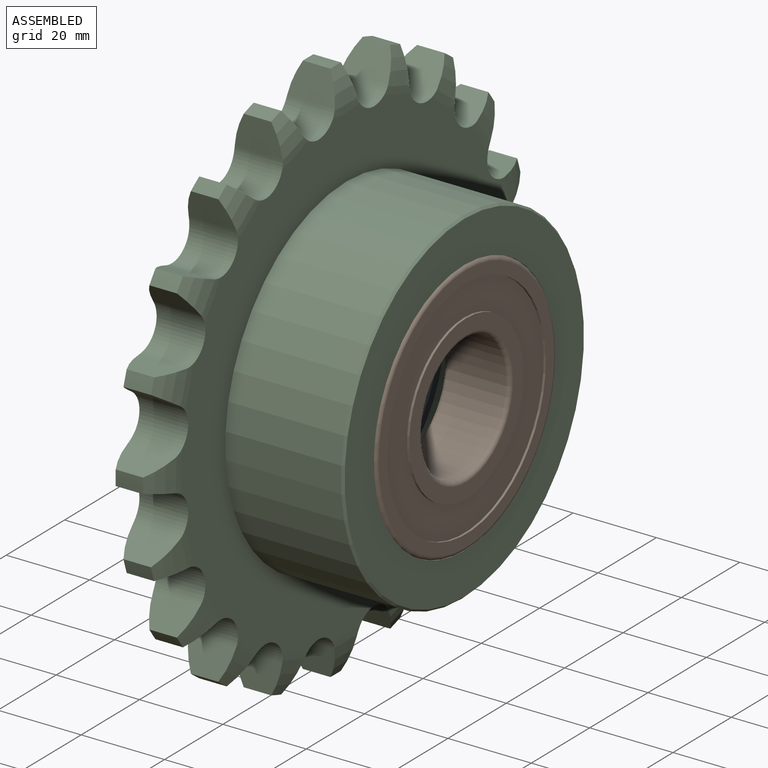
[diagram: assembled view]
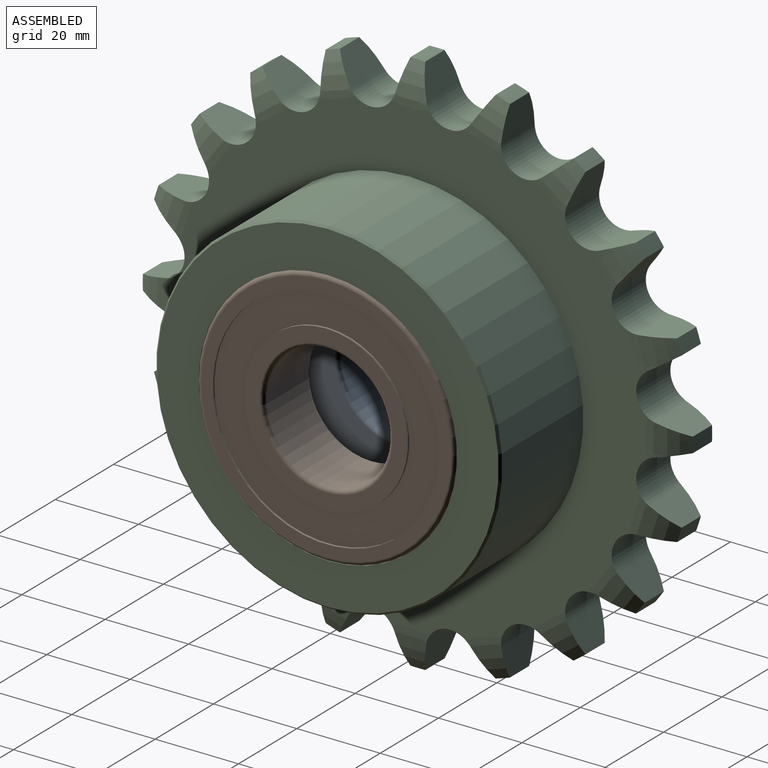
[diagram: assembled view, second angle]
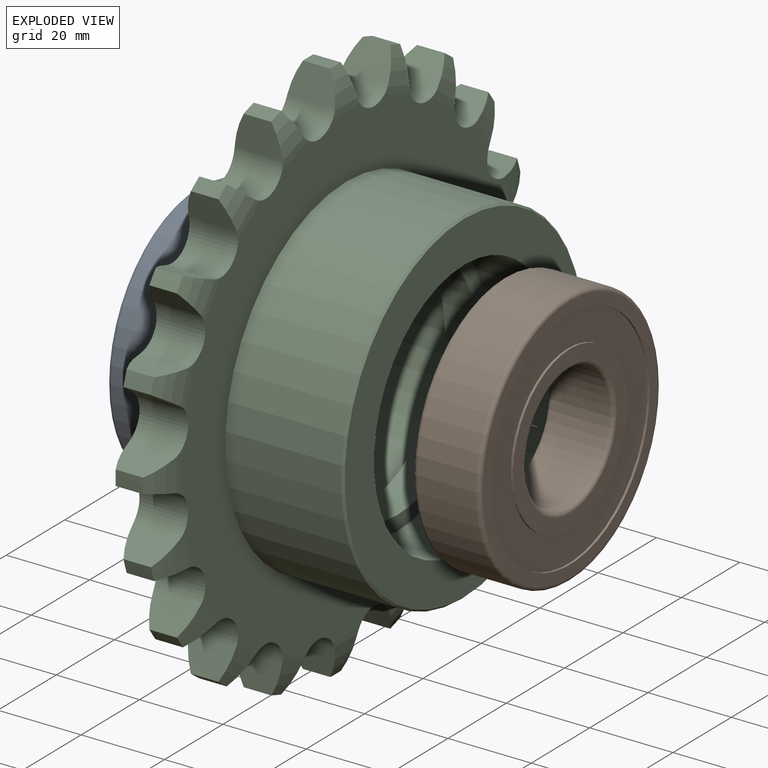
[diagram: exploded view]
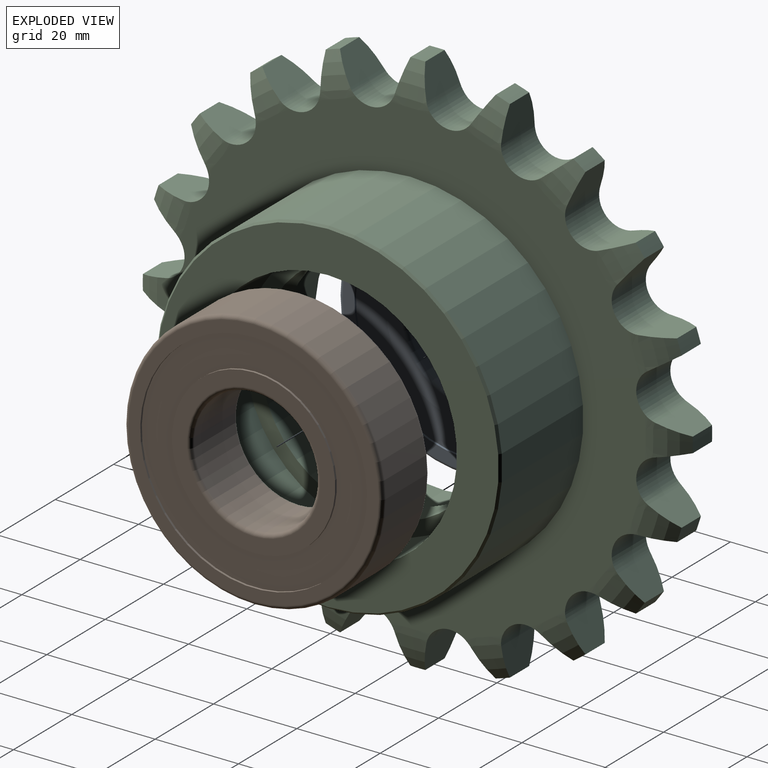
[diagram: exploded view, second angle]
ASSEMBLY  parts=3 mates=2
PART A: 16 faces, bbox 16x67.1x67.1 mm
  f0: torus R=30mm, axis (-1,0,0), area 302.4mm2, adj f1,f15
  f1: plane 60x60mm, normal (-1,0,0), area 503.2mm2, adj f0,f2
  f2: cylinder r=27.2mm len=54.4mm, axis (-1,0,0), area 90.6mm2, adj f1,f3
  f3: plane 54.4x54.4mm, normal (-1,0,0), area 1117.4mm2, adj f2,f4
  f4: cylinder r=19.6mm len=39.2mm, axis (-1,0,0), area 65.3mm2, adj f3,f5
  f5: plane 39.2x39.2mm, normal (-1,0,0), area 402.6mm2, adj f4,f6
  f6: torus R=16mm, axis (-1,0,0), area 151.6mm2, adj f5,f7
  f7: cylinder r=15mm len=30mm, axis (-1,0,0), area 1319.5mm2, adj f6,f8
  f8: torus R=16mm, axis (-1,0,0), area 151.6mm2, adj f7,f9
  f9: plane 39.2x39.2mm, normal (1,0,0), area 402.6mm2, adj f8,f10
  f10: cylinder r=19.6mm len=39.2mm, axis (-1,0,0), area 65.3mm2, adj f9,f11
  f11: plane 54.4x54.4mm, normal (1,0,0), area 1117.4mm2, adj f10,f12
  f12: cylinder r=27.2mm len=54.4mm, axis (-1,0,0), area 90.6mm2, adj f11,f13
  f13: plane 60x60mm, normal (1,0,0), area 503.2mm2, adj f12,f14
  f14: torus R=30mm, axis (-1,0,0), area 302.4mm2, adj f13,f15
  f15: cylinder r=31mm len=62mm, axis (-1,0,0), area 2726.9mm2, adj f0,f14
PART B: same geometry as A
PART C: 130 faces, bbox 40x140.6x140.6 mm
  f0: torus R=56.47mm, axis (-1,0,0), area 61.9mm2, adj f19,f57,f70,f72,f127,f128
  f1: torus R=56.47mm, axis (-1,0,0), area 61.9mm2, adj f20,f57,f125,f126,f128,f129
  f2: torus R=56.47mm, axis (-1,0,0), area 61.9mm2, adj f21,f57,f122,f123,f124,f125
  f3: torus R=56.47mm, axis (-1,0,0), area 61.9mm2, adj f22,f57,f119,f120,f121,f122
  f4: torus R=56.47mm, axis (-1,0,0), area 61.9mm2, adj f23,f57,f116,f117,f118,f119
  f5: torus R=56.47mm, axis (-1,0,0), area 61.9mm2, adj f24,f57,f113,f114,f115,f116
  f6: torus R=56.47mm, axis (-1,0,0), area 61.9mm2, adj f25,f57,f110,f111,f112,f113
  f7: torus R=56.47mm, axis (-1,0,0), area 61.9mm2, adj f26,f57,f107,f108,f109,f110
  f8: torus R=56.47mm, axis (-1,0,0), area 61.9mm2, adj f27,f57,f104,f105,f106,f107
  f9: torus R=56.47mm, axis (-1,0,0), area 61.9mm2, adj f28,f57,f101,f102,f103,f104
  f10: torus R=56.47mm, axis (-1,0,0), area 61.9mm2, adj f29,f57,f98,f99,f100,f101
  f11: torus R=56.47mm, axis (-1,0,0), area 61.9mm2, adj f30,f57,f95,f96,f97,f98
  f12: torus R=56.47mm, axis (-1,0,0), area 61.9mm2, adj f31,f57,f92,f93,f94,f95
  f13: torus R=56.47mm, axis (-1,0,0), area 61.9mm2, adj f32,f57,f89,f90,f91,f92
  f14: torus R=56.47mm, axis (-1,0,0), area 61.9mm2, adj f33,f57,f86,f87,f88,f89
  f15: torus R=56.47mm, axis (-1,0,0), area 61.9mm2, adj f34,f57,f83,f84,f85,f86
  f16: torus R=56.47mm, axis (-1,0,0), area 61.9mm2, adj f35,f57,f80,f81,f82,f83
  f17: torus R=56.47mm, axis (-1,0,0), area 61.9mm2, adj f36,f57,f77,f78,f79,f80
  f18: torus R=56.47mm, axis (-1,0,0), area 61.9mm2, adj f37,f57,f74,f75,f76,f77
  f19: cylinder r=66mm len=6.6mm, axis (-1,0,0), area 23.6mm2, adj f0,f38,f72,f127
  f20: cylinder r=66mm len=6.6mm, axis (-1,0,0), area 23.6mm2, adj f1,f39,f126,f129
  f21: cylinder r=66mm len=6.6mm, axis (-1,0,0), area 23.6mm2, adj f2,f40,f123,f124
  f22: cylinder r=66mm len=6.6mm, axis (-1,0,0), area 23.6mm2, adj f3,f41,f120,f121
  f23: cylinder r=66mm len=6.6mm, axis (-1,0,0), area 23.6mm2, adj f4,f42,f117,f118
  f24: cylinder r=66mm len=6.6mm, axis (-1,0,0), area 23.6mm2, adj f5,f43,f114,f115
  f25: cylinder r=66mm len=6.6mm, axis (-1,0,0), area 23.6mm2, adj f6,f44,f111,f112
  f26: cylinder r=66mm len=6.6mm, axis (-1,0,0), area 23.6mm2, adj f7,f45,f108,f109
  f27: cylinder r=66mm len=6.6mm, axis (-1,0,0), area 23.6mm2, adj f8,f46,f105,f106
  f28: cylinder r=66mm len=6.6mm, axis (-1,0,0), area 23.6mm2, adj f9,f47,f102,f103
  f29: cylinder r=66mm len=6.6mm, axis (-1,0,0), area 23.6mm2, adj f10,f48,f99,f100
  f30: cylinder r=66mm len=6.6mm, axis (-1,0,0), area 23.6mm2, adj f11,f49,f96,f97
  f31: cylinder r=66mm len=6.6mm, axis (-1,0,0), area 23.6mm2, adj f12,f50,f93,f94
  f32: cylinder r=66mm len=6.6mm, axis (-1,0,0), area 23.6mm2, adj f13,f51,f90,f91
  f33: cylinder r=66mm len=6.6mm, axis (-1,0,0), area 23.6mm2, adj f14,f52,f87,f88
  f34: cylinder r=66mm len=6.6mm, axis (-1,0,0), area 23.6mm2, adj f15,f53,f84,f85
  f35: cylinder r=66mm len=6.6mm, axis (-1,0,0), area 23.6mm2, adj f16,f54,f81,f82
  f36: cylinder r=66mm len=6.6mm, axis (-1,0,0), area 23.6mm2, adj f17,f55,f78,f79
  f37: cylinder r=66mm len=6.6mm, axis (-1,0,0), area 23.6mm2, adj f18,f56,f75,f76
  f38: torus R=56.47mm, axis (-1,0,0), area 61.9mm2, adj f19,f58,f70,f72,f127,f128
  f39: torus R=56.47mm, axis (-1,0,0), area 61.9mm2, adj f20,f58,f125,f126,f128,f129
  f40: torus R=56.47mm, axis (-1,0,0), area 61.9mm2, adj f21,f58,f122,f123,f124,f125
  f41: torus R=56.47mm, axis (-1,0,0), area 61.9mm2, adj f22,f58,f119,f120,f121,f122
  f42: torus R=56.47mm, axis (-1,0,0), area 61.9mm2, adj f23,f58,f116,f117,f118,f119
  f43: torus R=56.47mm, axis (-1,0,0), area 61.9mm2, adj f24,f58,f113,f114,f115,f116
  f44: torus R=56.47mm, axis (-1,0,0), area 61.9mm2, adj f25,f58,f110,f111,f112,f113
  f45: torus R=56.47mm, axis (-1,0,0), area 61.9mm2, adj f26,f58,f107,f108,f109,f110
  f46: torus R=56.47mm, axis (-1,0,0), area 61.9mm2, adj f27,f58,f104,f105,f106,f107
  f47: torus R=56.47mm, axis (-1,0,0), area 61.9mm2, adj f28,f58,f101,f102,f103,f104
  f48: torus R=56.47mm, axis (-1,0,0), area 61.9mm2, adj f29,f58,f98,f99,f100,f101
  f49: torus R=56.47mm, axis (-1,0,0), area 61.9mm2, adj f30,f58,f95,f96,f97,f98
  f50: torus R=56.47mm, axis (-1,0,0), area 61.9mm2, adj f31,f58,f92,f93,f94,f95
  f51: torus R=56.47mm, axis (-1,0,0), area 61.9mm2, adj f32,f58,f89,f90,f91,f92
  f52: torus R=56.47mm, axis (-1,0,0), area 61.9mm2, adj f33,f58,f86,f87,f88,f89
  f53: torus R=56.47mm, axis (-1,0,0), area 61.9mm2, adj f34,f58,f83,f84,f85,f86
  f54: torus R=56.47mm, axis (-1,0,0), area 61.9mm2, adj f35,f58,f80,f81,f82,f83
  f55: torus R=56.47mm, axis (-1,0,0), area 61.9mm2, adj f36,f58,f77,f78,f79,f80
  f56: torus R=56.47mm, axis (-1,0,0), area 61.9mm2, adj f37,f58,f74,f75,f76,f77
  f57: plane 112.95x112.95mm, normal (1,0,0), area 4447.4mm2, adj f0,f1,f2,f3,f4,f5,f6,f7
  f58: plane 112.95x112.95mm, normal (-1,0,0), area 6839mm2, adj f38,f39,f40,f41,f42,f43,f44,f45
  f59: cylinder r=31mm len=62mm, axis (-1,0,0), area 3116.5mm2, adj f58,f64
  f60: torus R=56.47mm, axis (-1,0,0), area 61.9mm2, adj f57,f61,f70,f71,f73,f74
  f61: cylinder r=66mm len=6.6mm, axis (-1,0,0), area 23.6mm2, adj f60,f62,f71,f73
  f62: torus R=56.47mm, axis (-1,0,0), area 61.9mm2, adj f58,f61,f70,f71,f73,f74
  f63: cylinder r=41.5mm len=83mm, axis (-1,0,0), area 7248.9mm2, adj f57,f69
  f64: plane 62x62mm, normal (-1,0,0), area 643.2mm2, adj f59,f65
  f65: cylinder r=27.5mm len=55mm, axis (-1,0,0), area 1382.3mm2, adj f64,f66
  f66: plane 62x62mm, normal (1,0,0), area 643.2mm2, adj f65,f67
  f67: cylinder r=31mm len=62mm, axis (-1,0,0), area 3116.5mm2, adj f66,f68
  f68: plane 82x82mm, normal (1,0,0), area 2261.9mm2, adj f67,f69
  f69: cone r=41mm half-angle=45deg, axis (-1,0,0), area 183.3mm2, adj f63,f68
  f70: cylinder r=5.96mm len=11.7mm, axis (-1,0,0), area 159.7mm2, adj f0,f38,f57,f58,f60,f62,f71,f72
  f71: plane 11.44x6.41mm, normal (0,-0.84,0.55), area 73.1mm2, adj f60,f61,f62,f70
  f72: plane 11.44x7.38mm, normal (0,0.97,0.26), area 73.1mm2, adj f0,f19,f38,f70
  f73: plane 11.44x7.63mm, normal (0,1,-0.05), area 73.1mm2, adj f60,f61,f62,f74
  f74: cylinder r=5.96mm len=11.7mm, axis (-1,0,0), area 159.7mm2, adj f18,f56,f57,f58,f60,f62,f73,f75
  f75: plane 11.44x5.94mm, normal (0,-0.63,0.78), area 73.1mm2, adj f18,f37,f56,f74
  f76: plane 11.44x7.14mm, normal (0,0.93,-0.36), area 73.1mm2, adj f18,f37,f56,f77
  f77: cylinder r=5.96mm len=11.7mm, axis (-1,0,0), area 159.7mm2, adj f17,f18,f55,f56,f57,f58,f76,f78
  f78: plane 11.44x7.14mm, normal (0,-0.36,0.93), area 73.1mm2, adj f17,f36,f55,f77
  f79: plane 11.44x5.94mm, normal (0,0.78,-0.63), area 73.1mm2, adj f17,f36,f55,f80
  f80: cylinder r=5.96mm len=11.7mm, axis (-1,0,0), area 159.7mm2, adj f16,f17,f54,f55,f57,f58,f79,f81
  f81: plane 11.44x7.63mm, normal (0,-0.05,1), area 73.1mm2, adj f16,f35,f54,f80
  f82: plane 11.44x6.41mm, normal (0,0.55,-0.84), area 73.1mm2, adj f16,f35,f54,f83
  f83: cylinder r=5.96mm len=11.7mm, axis (-1,0,0), area 159.7mm2, adj f15,f16,f53,f54,f57,f58,f82,f84
  f84: plane 11.44x7.38mm, normal (0,0.26,0.97), area 73.1mm2, adj f15,f34,f53,f83
  f85: plane 11.44x7.38mm, normal (0,0.26,-0.97), area 73.1mm2, adj f15,f34,f53,f86
  f86: cylinder r=5.96mm len=11.7mm, axis (-1,0,0), area 159.7mm2, adj f14,f15,f52,f53,f57,f58,f85,f87
  f87: plane 11.44x6.41mm, normal (0,0.55,0.84), area 73.1mm2, adj f14,f33,f52,f86
  f88: plane 11.44x7.63mm, normal (0,-0.05,-1), area 73.1mm2, adj f14,f33,f52,f89
  f89: cylinder r=5.96mm len=11.7mm, axis (-1,0,0), area 159.7mm2, adj f13,f14,f51,f52,f57,f58,f88,f90
  f90: plane 11.44x5.94mm, normal (0,0.78,0.63), area 73.1mm2, adj f13,f32,f51,f89
  f91: plane 11.44x7.14mm, normal (0,-0.36,-0.93), area 73.1mm2, adj f13,f32,f51,f92
  f92: cylinder r=5.96mm len=11.7mm, axis (-1,0,0), area 159.7mm2, adj f12,f13,f50,f51,f57,f58,f91,f93
  f93: plane 11.44x7.14mm, normal (0,0.93,0.36), area 73.1mm2, adj f12,f31,f50,f92
  f94: plane 11.44x5.94mm, normal (0,-0.63,-0.78), area 73.1mm2, adj f12,f31,f50,f95
  f95: cylinder r=5.96mm len=11.7mm, axis (-1,0,0), area 159.7mm2, adj f11,f12,f49,f50,f57,f58,f94,f96
  f96: plane 11.44x7.63mm, normal (0,1,0.05), area 73.1mm2, adj f11,f30,f49,f95
  f97: plane 11.44x6.41mm, normal (0,-0.84,-0.55), area 73.1mm2, adj f11,f30,f49,f98
  f98: cylinder r=5.96mm len=11.7mm, axis (-1,0,0), area 159.7mm2, adj f10,f11,f48,f49,f57,f58,f97,f99
  f99: plane 11.44x7.38mm, normal (0,0.97,-0.26), area 73.1mm2, adj f10,f29,f48,f98
  f100: plane 11.44x7.38mm, normal (0,-0.97,-0.26), area 73.1mm2, adj f10,f29,f48,f101
  f101: cylinder r=5.96mm len=11.7mm, axis (-1,0,0), area 159.7mm2, adj f9,f10,f47,f48,f57,f58,f100,f102
  f102: plane 11.44x6.41mm, normal (0,0.84,-0.55), area 73.1mm2, adj f9,f28,f47,f101
  f103: plane 11.44x7.63mm, normal (0,-1,0.05), area 73.1mm2, adj f9,f28,f47,f104
  f104: cylinder r=5.96mm len=11.7mm, axis (-1,0,0), area 159.7mm2, adj f8,f9,f46,f47,f57,f58,f103,f105
  f105: plane 11.44x5.94mm, normal (0,0.63,-0.78), area 73.1mm2, adj f8,f27,f46,f104
  f106: plane 11.44x7.14mm, normal (0,-0.93,0.36), area 73.1mm2, adj f8,f27,f46,f107
  f107: cylinder r=5.96mm len=11.7mm, axis (-1,0,0), area 159.7mm2, adj f7,f8,f45,f46,f57,f58,f106,f108
  f108: plane 11.44x7.14mm, normal (0,0.36,-0.93), area 73.1mm2, adj f7,f26,f45,f107
  f109: plane 11.44x5.94mm, normal (0,-0.78,0.63), area 73.1mm2, adj f7,f26,f45,f110
  f110: cylinder r=5.96mm len=11.7mm, axis (-1,0,0), area 159.7mm2, adj f6,f7,f44,f45,f57,f58,f109,f111
  f111: plane 11.44x7.63mm, normal (0,0.05,-1), area 73.1mm2, adj f6,f25,f44,f110
  f112: plane 11.44x6.41mm, normal (0,-0.55,0.84), area 73.1mm2, adj f6,f25,f44,f113
  f113: cylinder r=5.96mm len=11.7mm, axis (-1,0,0), area 159.7mm2, adj f5,f6,f43,f44,f57,f58,f112,f114
  f114: plane 11.44x7.38mm, normal (0,-0.26,-0.97), area 73.1mm2, adj f5,f24,f43,f113
  f115: plane 11.44x7.38mm, normal (0,-0.26,0.97), area 73.1mm2, adj f5,f24,f43,f116
  f116: cylinder r=5.96mm len=11.7mm, axis (-1,0,0), area 159.7mm2, adj f4,f5,f42,f43,f57,f58,f115,f117
  f117: plane 11.44x6.41mm, normal (0,-0.55,-0.84), area 73.1mm2, adj f4,f23,f42,f116
  f118: plane 11.44x7.63mm, normal (0,0.05,1), area 73.1mm2, adj f4,f23,f42,f119
  f119: cylinder r=5.96mm len=11.7mm, axis (-1,0,0), area 159.7mm2, adj f3,f4,f41,f42,f57,f58,f118,f120
  f120: plane 11.44x5.94mm, normal (0,-0.78,-0.63), area 73.1mm2, adj f3,f22,f41,f119
  f121: plane 11.44x7.14mm, normal (0,0.36,0.93), area 73.1mm2, adj f3,f22,f41,f122
  f122: cylinder r=5.96mm len=11.7mm, axis (-1,0,0), area 159.7mm2, adj f2,f3,f40,f41,f57,f58,f121,f123
  f123: plane 11.44x7.14mm, normal (0,-0.93,-0.36), area 73.1mm2, adj f2,f21,f40,f122
  f124: plane 11.44x5.94mm, normal (0,0.63,0.78), area 73.1mm2, adj f2,f21,f40,f125
  f125: cylinder r=5.96mm len=11.7mm, axis (-1,0,0), area 159.7mm2, adj f1,f2,f39,f40,f57,f58,f124,f126
  f126: plane 11.44x7.63mm, normal (0,-1,-0.05), area 73.1mm2, adj f1,f20,f39,f125
  f127: plane 11.44x7.38mm, normal (0,-0.97,0.26), area 73.1mm2, adj f0,f19,f38,f128
  f128: cylinder r=5.96mm len=11.7mm, axis (-1,0,0), area 159.7mm2, adj f0,f1,f38,f39,f57,f58,f127,f129
  f129: plane 11.44x6.41mm, normal (0,0.84,0.55), area 73.1mm2, adj f1,f20,f39,f128
PLACE A t=(-41.86,-13.17,8.71)mm
PLACE B t=(-16.33,-13.17,8.71)mm
PLACE C t=(-40.86,-13.17,8.71)mm
MATE fastened A.f0 <-> C.f0  axis (-1,0,0) through (-40.86,-13.17,8.71)mm
MATE fastened B.f0 <-> C.f0  axis (1,0,0) through (-0.86,-13.17,8.71)mm
